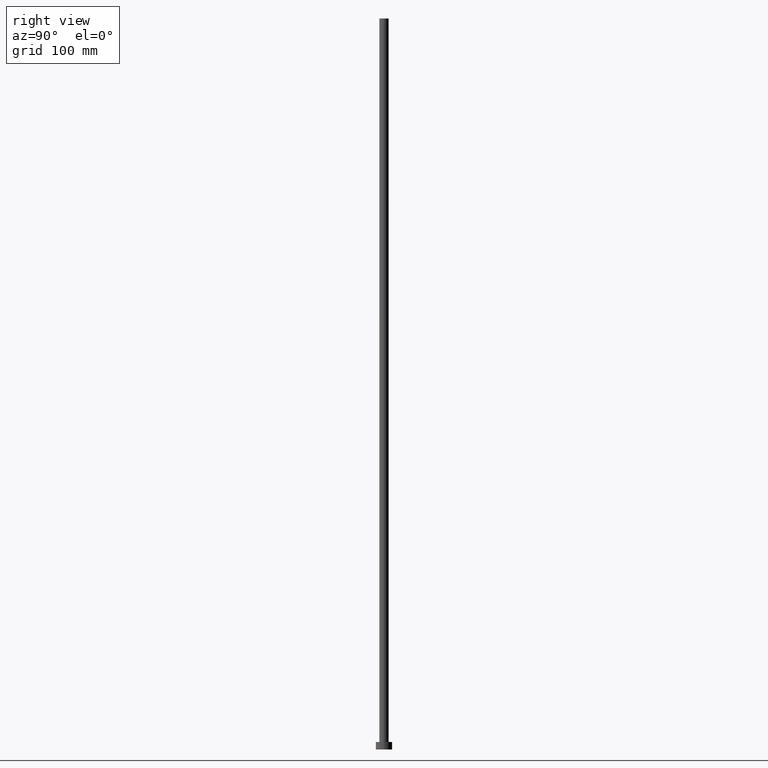
[diagram: clean part render]
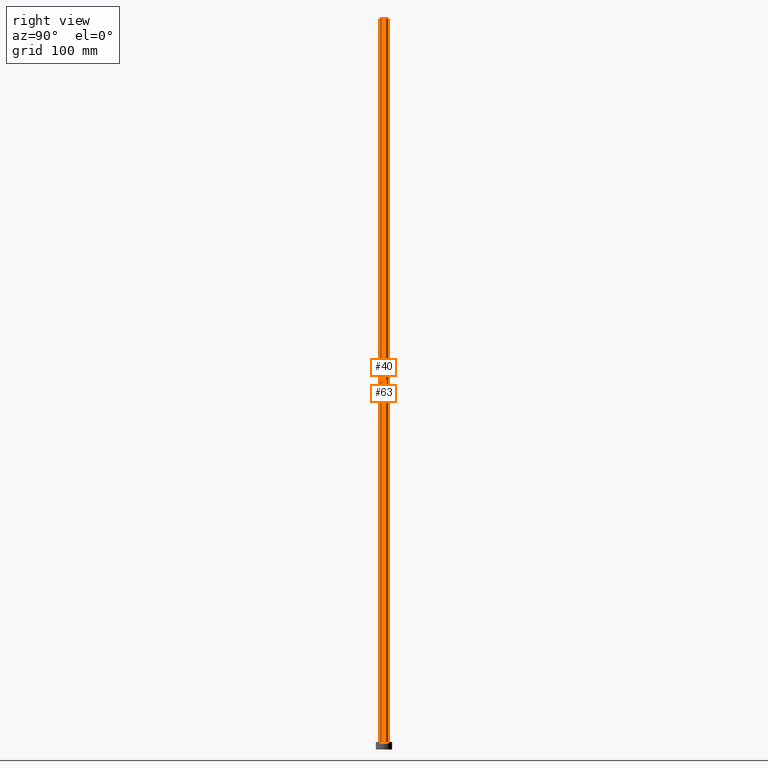
[diagram: same view with one multi-face feature highlighted, each face labeled with its STEP entity id]
A machine part, right view. The highlighted faces form ONE feature: a constant-radius fillet chain: 2 tangent blend faces with common blend radius 4 mm. The faces share edges in the B-rep.
Their STEP definitions:
[1] entity #40 (Cylinder):
#2 = DIRECTION ( 'NONE',  ( 0.000000000000000000, 0.000000000000000000, 1.000000000000000000 ) ) ;
#6 = ORIENTED_EDGE ( 'NONE', *, *, #52, .F. ) ;
#8 = VECTOR ( 'NONE', #43, 1000.000000000000000 ) ;
#24 = VERTEX_POINT ( 'NONE', #177 ) ;
#40 = ADVANCED_FACE ( 'NONE', ( #134 ), #122, .T. ) ;
#43 = DIRECTION ( 'NONE',  ( -0.000000000000000000, -0.000000000000000000, -1.000000000000000000 ) ) ;
#47 = VERTEX_POINT ( 'NONE', #168 ) ;
#52 = EDGE_CURVE ( 'NONE', #249, #47, #156, .T. ) ;
#55 = EDGE_CURVE ( 'NONE', #24, #249, #62, .T. ) ;
#57 = DIRECTION ( 'NONE',  ( -1.000000000000000000, 0.000000000000000000, 0.000000000000000000 ) ) ;
#62 = CIRCLE ( 'NONE', #199, 4.000000000000000000 ) ;
#88 = ORIENTED_EDGE ( 'NONE', *, *, #152, .T. ) ;
#111 = AXIS2_PLACEMENT_3D ( 'NONE', #214, #117, #178 ) ;
#112 = VERTEX_POINT ( 'NONE', #138 ) ;
#114 = ORIENTED_EDGE ( 'NONE', *, *, #212, .T. ) ;
#117 = DIRECTION ( 'NONE',  ( 0.000000000000000000, 0.000000000000000000, 1.000000000000000000 ) ) ;
#118 = CARTESIAN_POINT ( 'NONE',  ( -4.000000000000000000, 0.000000000000000000, 630.0000000000000000 ) ) ;
#122 = CYLINDRICAL_SURFACE ( 'NONE', #191, 4.000000000000000000 ) ;
#129 = VECTOR ( 'NONE', #195, 1000.000000000000000 ) ;
#133 = CARTESIAN_POINT ( 'NONE',  ( 0.000000000000000000, 0.000000000000000000, 630.0000000000000000 ) ) ;
#134 = FACE_OUTER_BOUND ( 'NONE', #213, .T. ) ;
#138 = CARTESIAN_POINT ( 'NONE',  ( -4.000000000000000000, 0.000000000000000000, 6.500000000000000000 ) ) ;
#140 = DIRECTION ( 'NONE',  ( -0.000000000000000000, -0.000000000000000000, -1.000000000000000000 ) ) ;
#143 = CARTESIAN_POINT ( 'NONE',  ( 0.000000000000000000, 0.000000000000000000, 630.0000000000000000 ) ) ;
#151 = CARTESIAN_POINT ( 'NONE',  ( 4.000000000000000000, 4.898587196589411843E-16, 630.0000000000000000 ) ) ;
#152 = EDGE_CURVE ( 'NONE', #112, #47, #219, .T. ) ;
#156 = LINE ( 'NONE', #227, #8 ) ;
#168 = CARTESIAN_POINT ( 'NONE',  ( 4.000000000000000000, 4.898587196589411843E-16, 6.500000000000000000 ) ) ;
#177 = CARTESIAN_POINT ( 'NONE',  ( -4.000000000000000000, 0.000000000000000000, 630.0000000000000000 ) ) ;
#178 = DIRECTION ( 'NONE',  ( 1.000000000000000000, 0.000000000000000000, 0.000000000000000000 ) ) ;
#191 = AXIS2_PLACEMENT_3D ( 'NONE', #143, #140, #57 ) ;
#195 = DIRECTION ( 'NONE',  ( -0.000000000000000000, -0.000000000000000000, -1.000000000000000000 ) ) ;
#199 = AXIS2_PLACEMENT_3D ( 'NONE', #133, #2, #205 ) ;
#205 = DIRECTION ( 'NONE',  ( 1.000000000000000000, 0.000000000000000000, 0.000000000000000000 ) ) ;
#206 = ORIENTED_EDGE ( 'NONE', *, *, #55, .F. ) ;
#212 = EDGE_CURVE ( 'NONE', #24, #112, #251, .T. ) ;
#213 = EDGE_LOOP ( 'NONE', ( #6, #206, #114, #88 ) ) ;
#214 = CARTESIAN_POINT ( 'NONE',  ( 0.000000000000000000, 0.000000000000000000, 6.500000000000000000 ) ) ;
#219 = CIRCLE ( 'NONE', #111, 4.000000000000000000 ) ;
#227 = CARTESIAN_POINT ( 'NONE',  ( 4.000000000000000000, 4.898587196589411843E-16, 630.0000000000000000 ) ) ;
#249 = VERTEX_POINT ( 'NONE', #151 ) ;
#251 = LINE ( 'NONE', #118, #129 ) ;
[2] entity #63 (Cylinder):
#8 = VECTOR ( 'NONE', #43, 1000.000000000000000 ) ;
#24 = VERTEX_POINT ( 'NONE', #177 ) ;
#26 = ORIENTED_EDGE ( 'NONE', *, *, #231, .T. ) ;
#34 = CARTESIAN_POINT ( 'NONE',  ( 0.000000000000000000, 0.000000000000000000, 6.500000000000000000 ) ) ;
#36 = AXIS2_PLACEMENT_3D ( 'NONE', #34, #75, #236 ) ;
#42 = AXIS2_PLACEMENT_3D ( 'NONE', #223, #46, #74 ) ;
#43 = DIRECTION ( 'NONE',  ( -0.000000000000000000, -0.000000000000000000, -1.000000000000000000 ) ) ;
#46 = DIRECTION ( 'NONE',  ( 0.000000000000000000, 0.000000000000000000, 1.000000000000000000 ) ) ;
#47 = VERTEX_POINT ( 'NONE', #168 ) ;
#52 = EDGE_CURVE ( 'NONE', #249, #47, #156, .T. ) ;
#63 = ADVANCED_FACE ( 'NONE', ( #184 ), #82, .T. ) ;
#64 = DIRECTION ( 'NONE',  ( -0.000000000000000000, -0.000000000000000000, -1.000000000000000000 ) ) ;
#74 = DIRECTION ( 'NONE',  ( 1.000000000000000000, 0.000000000000000000, 0.000000000000000000 ) ) ;
#75 = DIRECTION ( 'NONE',  ( 0.000000000000000000, 0.000000000000000000, 1.000000000000000000 ) ) ;
#80 = EDGE_CURVE ( 'NONE', #249, #24, #84, .T. ) ;
#82 = CYLINDRICAL_SURFACE ( 'NONE', #159, 4.000000000000000000 ) ;
#84 = CIRCLE ( 'NONE', #42, 4.000000000000000000 ) ;
#112 = VERTEX_POINT ( 'NONE', #138 ) ;
#118 = CARTESIAN_POINT ( 'NONE',  ( -4.000000000000000000, 0.000000000000000000, 630.0000000000000000 ) ) ;
#129 = VECTOR ( 'NONE', #195, 1000.000000000000000 ) ;
#138 = CARTESIAN_POINT ( 'NONE',  ( -4.000000000000000000, 0.000000000000000000, 6.500000000000000000 ) ) ;
#151 = CARTESIAN_POINT ( 'NONE',  ( 4.000000000000000000, 4.898587196589411843E-16, 630.0000000000000000 ) ) ;
#154 = DIRECTION ( 'NONE',  ( -1.000000000000000000, 0.000000000000000000, 0.000000000000000000 ) ) ;
#156 = LINE ( 'NONE', #227, #8 ) ;
#159 = AXIS2_PLACEMENT_3D ( 'NONE', #171, #64, #154 ) ;
#168 = CARTESIAN_POINT ( 'NONE',  ( 4.000000000000000000, 4.898587196589411843E-16, 6.500000000000000000 ) ) ;
#171 = CARTESIAN_POINT ( 'NONE',  ( 0.000000000000000000, 0.000000000000000000, 630.0000000000000000 ) ) ;
#172 = ORIENTED_EDGE ( 'NONE', *, *, #80, .F. ) ;
#175 = EDGE_LOOP ( 'NONE', ( #172, #226, #26, #244 ) ) ;
#177 = CARTESIAN_POINT ( 'NONE',  ( -4.000000000000000000, 0.000000000000000000, 630.0000000000000000 ) ) ;
#184 = FACE_OUTER_BOUND ( 'NONE', #175, .T. ) ;
#195 = DIRECTION ( 'NONE',  ( -0.000000000000000000, -0.000000000000000000, -1.000000000000000000 ) ) ;
#212 = EDGE_CURVE ( 'NONE', #24, #112, #251, .T. ) ;
#223 = CARTESIAN_POINT ( 'NONE',  ( 0.000000000000000000, 0.000000000000000000, 630.0000000000000000 ) ) ;
#226 = ORIENTED_EDGE ( 'NONE', *, *, #52, .T. ) ;
#227 = CARTESIAN_POINT ( 'NONE',  ( 4.000000000000000000, 4.898587196589411843E-16, 630.0000000000000000 ) ) ;
#231 = EDGE_CURVE ( 'NONE', #47, #112, #252, .T. ) ;
#236 = DIRECTION ( 'NONE',  ( 1.000000000000000000, 0.000000000000000000, 0.000000000000000000 ) ) ;
#244 = ORIENTED_EDGE ( 'NONE', *, *, #212, .F. ) ;
#249 = VERTEX_POINT ( 'NONE', #151 ) ;
#251 = LINE ( 'NONE', #118, #129 ) ;
#252 = CIRCLE ( 'NONE', #36, 4.000000000000000000 ) ;